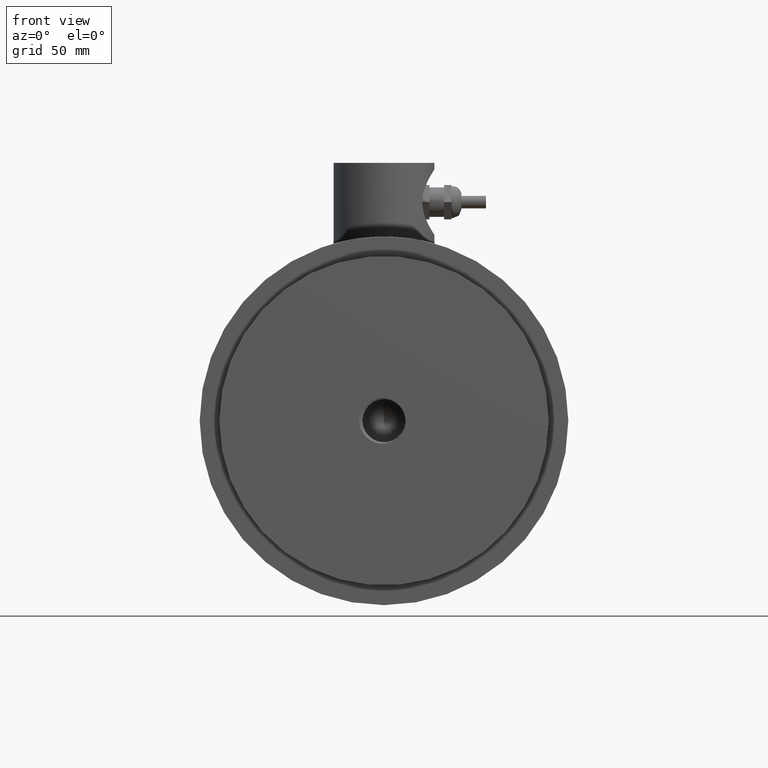
[diagram: clean part render]
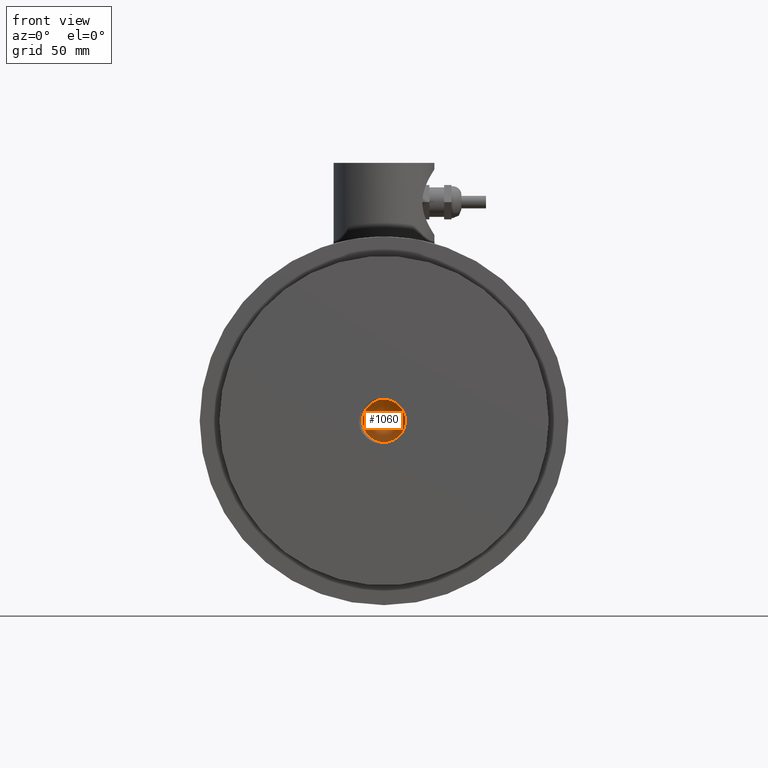
[diagram: same view with one face highlighted and labeled with its STEP entity id]
A machine part, front view. The second image highlights one B-rep face of the part: STEP entity #1060.
In plain terms, the highlighted conical surface has half-angle 59 deg.
Its self-contained STEP definition (entity closure, byte-faithful):
#16=CONICAL_SURFACE('',#1154,0.179505521285681,1.02974425867665);
#167=FACE_OUTER_BOUND('',#237,.T.);
#237=EDGE_LOOP('',(#917,#918,#919,#920,#921));
#320=LINE('',#4184,#390);
#390=VECTOR('',#1376,0.1875);
#408=CIRCLE('',#1127,0.344862204724409);
#412=CIRCLE('',#1151,0.344862204724409);
#413=CIRCLE('',#1152,0.344862204724409);
#467=VERTEX_POINT('',#1649);
#468=VERTEX_POINT('',#1654);
#507=VERTEX_POINT('',#2729);
#508=VERTEX_POINT('',#4183);
#584=EDGE_CURVE('',#467,#468,#408,.T.);
#642=EDGE_CURVE('',#468,#507,#412,.T.);
#643=EDGE_CURVE('',#507,#467,#413,.T.);
#652=EDGE_CURVE('',#507,#508,#320,.T.);
#917=ORIENTED_EDGE('',*,*,#642,.F.);
#918=ORIENTED_EDGE('',*,*,#584,.F.);
#919=ORIENTED_EDGE('',*,*,#643,.F.);
#920=ORIENTED_EDGE('',*,*,#652,.T.);
#921=ORIENTED_EDGE('',*,*,#652,.F.);
#1060=ADVANCED_FACE('',(#167),#16,.F.);
#1127=AXIS2_PLACEMENT_3D('',#1655,#1303,#1304);
#1151=AXIS2_PLACEMENT_3D('',#2730,#1368,#1369);
#1152=AXIS2_PLACEMENT_3D('',#2731,#1370,#1371);
#1154=AXIS2_PLACEMENT_3D('',#4182,#1374,#1375);
#1303=DIRECTION('center_axis',(0.,1.,0.));
#1304=DIRECTION('ref_axis',(0.,0.,-1.));
#1368=DIRECTION('center_axis',(0.,1.,0.));
#1369=DIRECTION('ref_axis',(0.,0.,-1.));
#1370=DIRECTION('center_axis',(0.,1.,0.));
#1371=DIRECTION('ref_axis',(0.,0.,-1.));
#1374=DIRECTION('center_axis',(0.,-1.,0.));
#1375=DIRECTION('ref_axis',(0.,0.,-1.));
#1376=DIRECTION('',(-1.04972719113862E-16,0.515038074910054,-0.857167300702112));
#1649=CARTESIAN_POINT('',(0.1442627911498,0.98,0.313238227770893));
#1654=CARTESIAN_POINT('',(0.285338986161932,0.98,-0.193679124387377));
#1655=CARTESIAN_POINT('Origin',(0.,0.98,0.));
#2729=CARTESIAN_POINT('',(4.22334395162647E-17,0.98,0.344862204724409));
#2730=CARTESIAN_POINT('Origin',(0.,0.98,0.));
#2731=CARTESIAN_POINT('Origin',(0.,0.98,0.));
#4182=CARTESIAN_POINT('Origin',(0.,1.07935631917134,0.));
#4183=CARTESIAN_POINT('',(0.,1.18721411780992,3.98582325557408E-17));
#4184=CARTESIAN_POINT('',(2.19830862071786E-17,1.07935631917134,0.179505521285681));